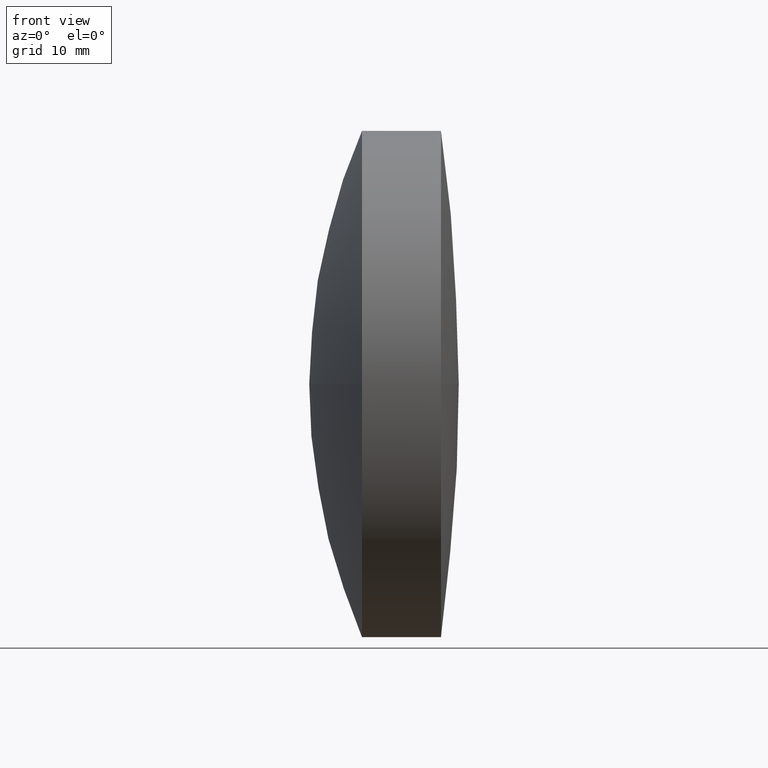
[diagram: clean part render]
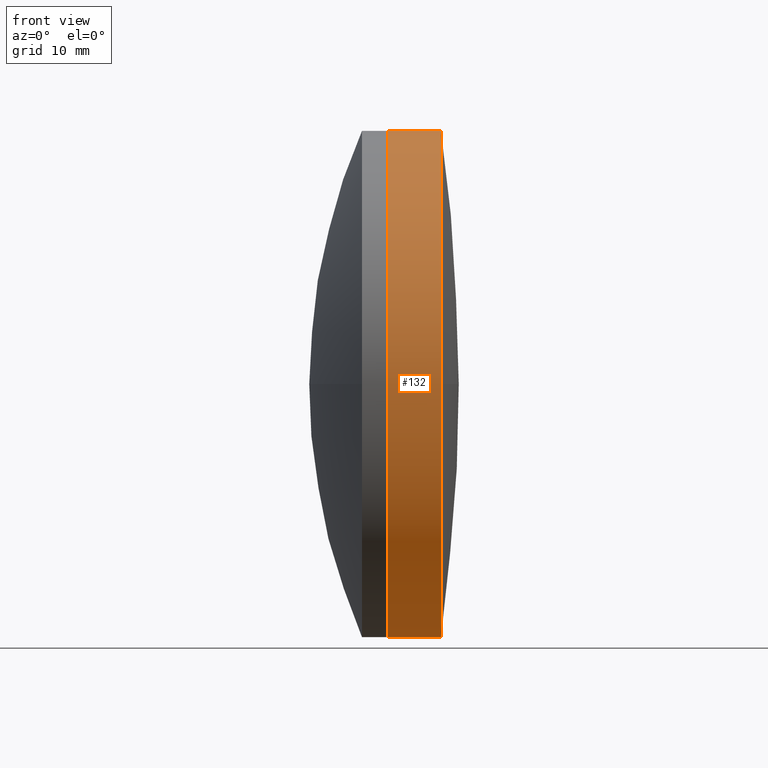
[diagram: same view with one face highlighted and labeled with its STEP entity id]
A machine part, front view. The second image highlights one B-rep face of the part: STEP entity #132.
In plain terms, the highlighted cylindrical surface (partial cylindrical patch) has radius 25.4 mm, axis along (-1, -0, -0).
Its self-contained STEP definition (entity closure, byte-faithful):
#4 = VERTEX_POINT ( 'NONE', #59 ) ;
#16 = EDGE_CURVE ( 'NONE', #182, #4, #229, .T. ) ;
#17 = CARTESIAN_POINT ( 'NONE',  ( -79.15676304157061338, 64.41514532454267794, -25.39999999999999858 ) ) ;
#18 = DIRECTION ( 'NONE',  ( -1.000000000000000000, -0.000000000000000000, -0.000000000000000000 ) ) ;
#20 = CARTESIAN_POINT ( 'NONE',  ( -75.05097348642850363, 64.41514532454267794, 25.39999999999999858 ) ) ;
#30 = EDGE_CURVE ( 'NONE', #111, #4, #224, .T. ) ;
#40 = DIRECTION ( 'NONE',  ( -1.000000000000000000, -0.000000000000000000, -0.000000000000000000 ) ) ;
#51 = CARTESIAN_POINT ( 'NONE',  ( -73.83507646784927658, 39.01514532454268647, -3.110602869834275682E-15 ) ) ;
#59 = CARTESIAN_POINT ( 'NONE',  ( -79.15676304157061338, 64.41514532454267794, 25.39999999999999858 ) ) ;
#71 = EDGE_CURVE ( 'NONE', #244, #222, #327, .T. ) ;
#81 = AXIS2_PLACEMENT_3D ( 'NONE', #300, #18, #156 ) ;
#94 = DIRECTION ( 'NONE',  ( -1.000000000000000000, -0.000000000000000000, -0.000000000000000000 ) ) ;
#96 = VERTEX_POINT ( 'NONE', #51 ) ;
#99 = CARTESIAN_POINT ( 'NONE',  ( -75.05097348642850363, 64.41514532454267794, 0.000000000000000000 ) ) ;
#107 = EDGE_CURVE ( 'NONE', #244, #96, #120, .T. ) ;
#111 = VERTEX_POINT ( 'NONE', #430 ) ;
#120 = CIRCLE ( 'NONE', #81, 25.39999999999999858 ) ;
#122 = AXIS2_PLACEMENT_3D ( 'NONE', #321, #40, #391 ) ;
#124 = DIRECTION ( 'NONE',  ( -1.000000000000000000, -0.000000000000000000, -0.000000000000000000 ) ) ;
#127 = EDGE_LOOP ( 'NONE', ( #407, #329, #264, #423, #183, #154 ) ) ;
#130 = DIRECTION ( 'NONE',  ( -1.000000000000000000, -0.000000000000000000, -0.000000000000000000 ) ) ;
#132 = ADVANCED_FACE ( 'NONE', ( #366 ), #234, .T. ) ;
#154 = ORIENTED_EDGE ( 'NONE', *, *, #186, .F. ) ;
#156 = DIRECTION ( 'NONE',  ( 0.000000000000000000, 0.000000000000000000, 1.000000000000000000 ) ) ;
#166 = CARTESIAN_POINT ( 'NONE',  ( -79.15676304157061338, 64.41514532454267794, 0.000000000000000000 ) ) ;
#182 = VERTEX_POINT ( 'NONE', #435 ) ;
#183 = ORIENTED_EDGE ( 'NONE', *, *, #30, .F. ) ;
#186 = EDGE_CURVE ( 'NONE', #222, #111, #440, .T. ) ;
#197 = VECTOR ( 'NONE', #130, 1000.000000000000000 ) ;
#218 = DIRECTION ( 'NONE',  ( 0.000000000000000000, 0.000000000000000000, 1.000000000000000000 ) ) ;
#222 = VERTEX_POINT ( 'NONE', #17 ) ;
#224 = CIRCLE ( 'NONE', #254, 25.39999999999999858 ) ;
#229 = LINE ( 'NONE', #20, #422 ) ;
#234 = CYLINDRICAL_SURFACE ( 'NONE', #386, 25.39999999999999858 ) ;
#244 = VERTEX_POINT ( 'NONE', #324 ) ;
#246 = AXIS2_PLACEMENT_3D ( 'NONE', #362, #299, #218 ) ;
#254 = AXIS2_PLACEMENT_3D ( 'NONE', #166, #94, #294 ) ;
#264 = ORIENTED_EDGE ( 'NONE', *, *, #429, .T. ) ;
#266 = CARTESIAN_POINT ( 'NONE',  ( -75.05097348642850363, 64.41514532454267794, -25.39999999999999858 ) ) ;
#294 = DIRECTION ( 'NONE',  ( 0.000000000000000000, 0.000000000000000000, 1.000000000000000000 ) ) ;
#299 = DIRECTION ( 'NONE',  ( -1.000000000000000000, -0.000000000000000000, -0.000000000000000000 ) ) ;
#300 = CARTESIAN_POINT ( 'NONE',  ( -73.83507646784929079, 64.41514532454267794, 0.000000000000000000 ) ) ;
#321 = CARTESIAN_POINT ( 'NONE',  ( -73.83507646784929079, 64.41514532454267794, 0.000000000000000000 ) ) ;
#324 = CARTESIAN_POINT ( 'NONE',  ( -73.83507646784929079, 64.41514532454267794, -25.39999999999999858 ) ) ;
#327 = LINE ( 'NONE', #266, #197 ) ;
#329 = ORIENTED_EDGE ( 'NONE', *, *, #107, .T. ) ;
#362 = CARTESIAN_POINT ( 'NONE',  ( -79.15676304157061338, 64.41514532454267794, 0.000000000000000000 ) ) ;
#366 = FACE_OUTER_BOUND ( 'NONE', #127, .T. ) ;
#372 = DIRECTION ( 'NONE',  ( -1.000000000000000000, -0.000000000000000000, -0.000000000000000000 ) ) ;
#373 = CIRCLE ( 'NONE', #122, 25.39999999999999858 ) ;
#386 = AXIS2_PLACEMENT_3D ( 'NONE', #99, #372, #410 ) ;
#391 = DIRECTION ( 'NONE',  ( 0.000000000000000000, 0.000000000000000000, 1.000000000000000000 ) ) ;
#407 = ORIENTED_EDGE ( 'NONE', *, *, #71, .F. ) ;
#410 = DIRECTION ( 'NONE',  ( 0.000000000000000000, 0.000000000000000000, 1.000000000000000000 ) ) ;
#422 = VECTOR ( 'NONE', #124, 1000.000000000000000 ) ;
#423 = ORIENTED_EDGE ( 'NONE', *, *, #16, .T. ) ;
#429 = EDGE_CURVE ( 'NONE', #96, #182, #373, .T. ) ;
#430 = CARTESIAN_POINT ( 'NONE',  ( -79.15676304157061338, 39.01514532454265805, -3.110602869834279232E-15 ) ) ;
#435 = CARTESIAN_POINT ( 'NONE',  ( -73.83507646784929079, 64.41514532454267794, 25.39999999999999858 ) ) ;
#440 = CIRCLE ( 'NONE', #246, 25.39999999999999858 ) ;